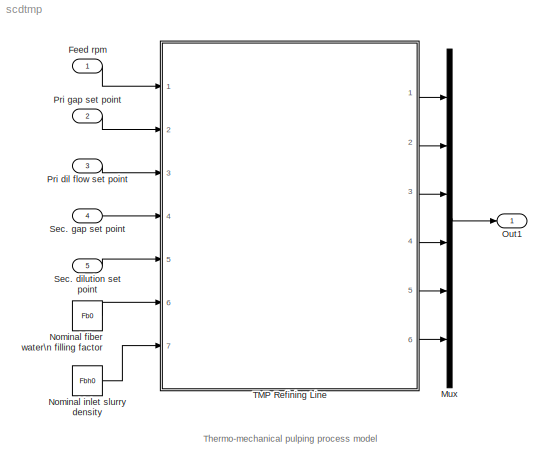
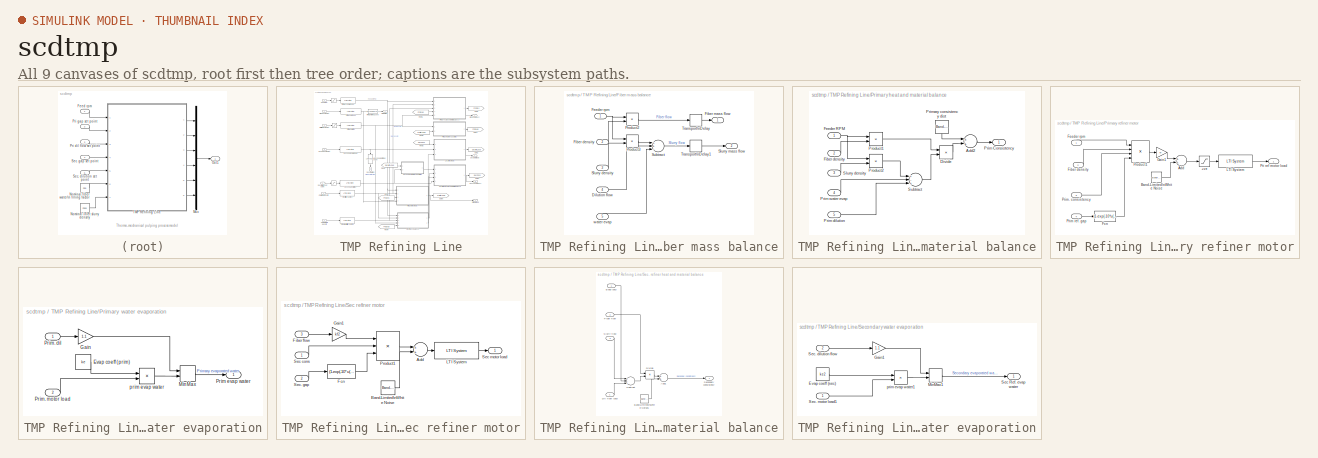
[diagram: thumbnail index - all 9 canvases of the model, root first then tree order]
MODEL scdtmp
KIND model
CONFIG PreLoadFcn = scdtmpinit
BLOCK [Inport] Feed rpm
  IconDisplay = Port number
  LatchInput = off
BLOCK [Mux] Mux
  DisplayOption = bar
  Inputs = 6
  Ports = [6, 1]
BLOCK [Constant] Nominal fiber water\n filling factor
  Value = Fb0
BLOCK [Constant] Nominal inlet slurry density
  Value = Fbh0
BLOCK [Outport] Out1
  BusOutputAsStruct = off
  IconDisplay = Port number
BLOCK [Inport] Pri dil flow set point
  IconDisplay = Port number
  LatchInput = off
  Port = 3
BLOCK [Inport] Pri gap set point
  IconDisplay = Port number
  LatchInput = off
  Port = 2
BLOCK [Inport] Sec. dilution set point
  IconDisplay = Port number
  LatchInput = off
  Port = 5
BLOCK [Inport] Sec. gap set point
  IconDisplay = Port number
  LatchInput = off
  Port = 4
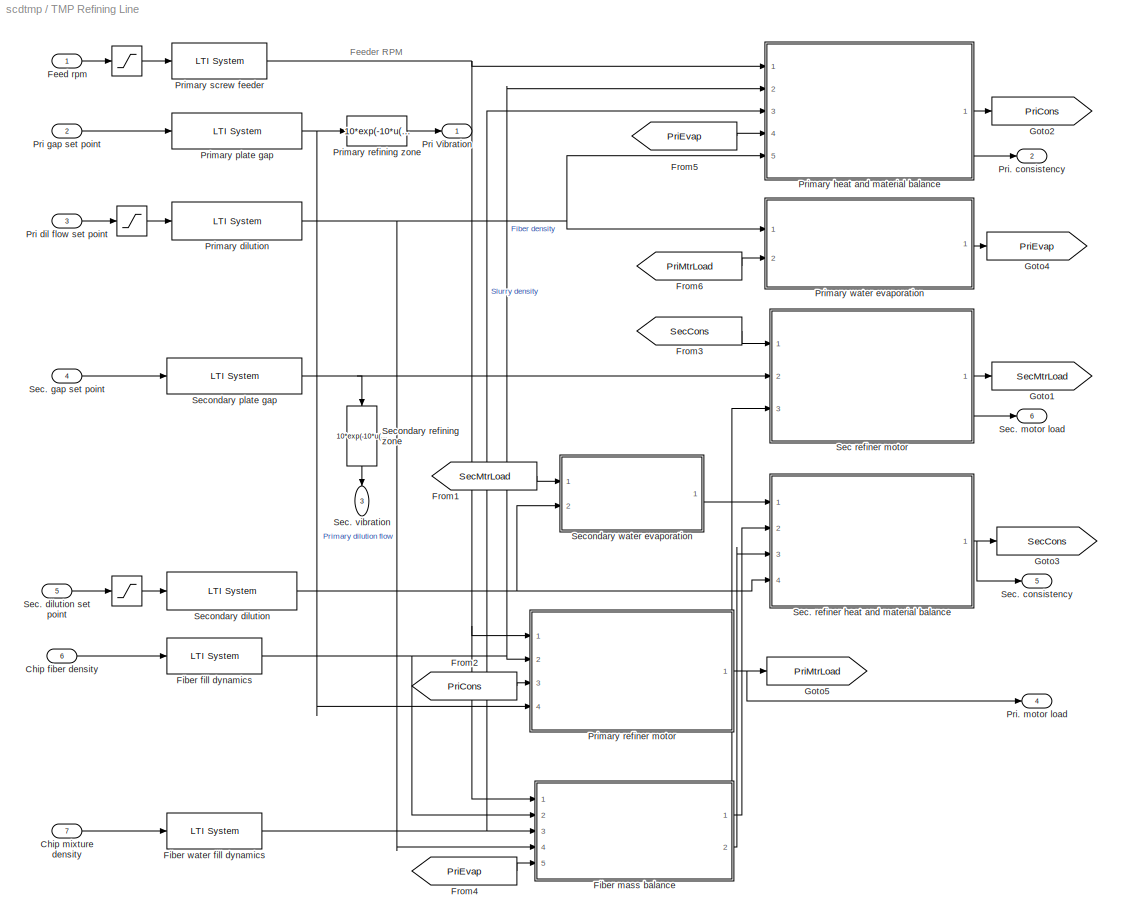
BLOCK [SubSystem] TMP Refining Line
  MinAlgLoopOccurrences = off
  Ports = [7, 6]
  PropExecContextAcrossSSBoundary = on
  RTWSystemCode = Auto
  TreatAsAtomicUnit = off
BLOCK [Saturate] TMP Refining Line/  
  LowerLimit = 25
  SampleTime = 0.5
  UpperLimit = 35
BLOCK [Saturate] TMP Refining Line/    
  LowerLimit = 90
  SampleTime = 0.5
  UpperLimit = 200
BLOCK [Saturate] TMP Refining Line/       
  LowerLimit = 90
  SampleTime = 0.5
  UpperLimit = 200
BLOCK [Inport] TMP Refining Line/Chip fiber density
  IconDisplay = Port number
  LatchInput = off
  Port = 6
BLOCK [Inport] TMP Refining Line/Chip mixture density
  IconDisplay = Port number
  LatchInput = off
  Port = 7
BLOCK [Inport] TMP Refining Line/Feed rpm
  IconDisplay = Port number
  LatchInput = off
BLOCK [Reference] TMP Refining Line/Fiber fill dynamics  REF=cstblocks/LTI System
  IC = Fb0
  Ports = [1, 1]
  ShowPortLabels = on
  SourceBlock = cstblocks/LTI System
  SourceType = LTI Block
  sys = FiberFill
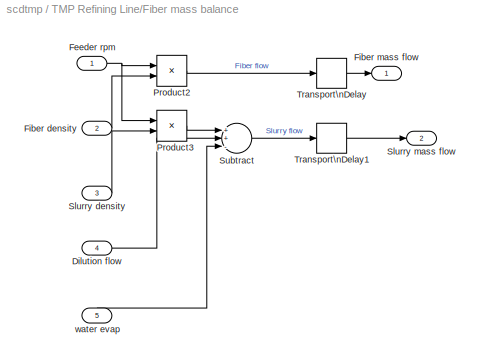
BLOCK [SubSystem] TMP Refining Line/Fiber mass balance
  MinAlgLoopOccurrences = off
  Ports = [5, 2]
  PropExecContextAcrossSSBoundary = on
  RTWSystemCode = Auto
  TreatAsAtomicUnit = off
BLOCK [Inport] TMP Refining Line/Fiber mass balance/Dilution flow
  IconDisplay = Port number
  LatchInput = off
  Port = 4
BLOCK [Inport] TMP Refining Line/Fiber mass balance/Feeder rpm
  IconDisplay = Port number
  LatchInput = off
BLOCK [Inport] TMP Refining Line/Fiber mass balance/Fiber density
  IconDisplay = Port number
  LatchInput = off
  Port = 2
BLOCK [Outport] TMP Refining Line/Fiber mass balance/Fiber mass flow
  BusOutputAsStruct = off
  IconDisplay = Port number
BLOCK [Product] TMP Refining Line/Fiber mass balance/Product2
  InputSameDT = off
  OutDataTypeMode = Inherit via internal rule
  Ports = [2, 1]
  SaturateOnIntegerOverflow = off
BLOCK [Product] TMP Refining Line/Fiber mass balance/Product3
  InputSameDT = off
  OutDataTypeMode = Inherit via internal rule
  Ports = [2, 1]
  SaturateOnIntegerOverflow = off
BLOCK [Inport] TMP Refining Line/Fiber mass balance/Slurry density
  IconDisplay = Port number
  LatchInput = off
  Port = 3
BLOCK [Outport] TMP Refining Line/Fiber mass balance/Slurry mass flow
  BusOutputAsStruct = off
  IconDisplay = Port number
  Port = 2
BLOCK [Sum] TMP Refining Line/Fiber mass balance/Subtract
  InputSameDT = off
  Inputs = ++-
  OutDataTypeMode = Inherit via internal rule
  OutScaling = 2^-10
  Ports = [3, 1]
  SaturateOnIntegerOverflow = off
BLOCK [TransportDelay] TMP Refining Line/Fiber mass balance/Transport\nDelay
  DelayTime = 2
  InitialInput = m2
BLOCK [TransportDelay] TMP Refining Line/Fiber mass balance/Transport\nDelay1
  DelayTime = 2
  InitialInput = M2
BLOCK [Inport] TMP Refining Line/Fiber mass balance/water evap
  IconDisplay = Port number
  LatchInput = off
  Port = 5
BLOCK [Reference] TMP Refining Line/Fiber water fill dynamics  REF=cstblocks/LTI System
  IC = Fbh0
  Ports = [1, 1]
  ShowPortLabels = on
  SourceBlock = cstblocks/LTI System
  SourceType = LTI Block
  sys = FiberWaterFill
BLOCK [From] TMP Refining Line/From1
  CloseFcn = tagdialog Close
  DialogController = Simulink.DDGSource
  GotoTag = SecMtrLoad
BLOCK [From] TMP Refining Line/From2
  CloseFcn = tagdialog Close
  DialogController = Simulink.DDGSource
  GotoTag = PriCons
BLOCK [From] TMP Refining Line/From3
  CloseFcn = tagdialog Close
  DialogController = Simulink.DDGSource
  GotoTag = SecCons
BLOCK [From] TMP Refining Line/From4
  CloseFcn = tagdialog Close
  DialogController = Simulink.DDGSource
  GotoTag = PriEvap
BLOCK [From] TMP Refining Line/From5
  CloseFcn = tagdialog Close
  DialogController = Simulink.DDGSource
  GotoTag = PriEvap
BLOCK [From] TMP Refining Line/From6
  CloseFcn = tagdialog Close
  DialogController = Simulink.DDGSource
  GotoTag = PriMtrLoad
BLOCK [Goto] TMP Refining Line/Goto1
  DialogController = Simulink.DDGSource
  GotoTag = SecMtrLoad
  TagVisibility = local
BLOCK [Goto] TMP Refining Line/Goto2
  DialogController = Simulink.DDGSource
  GotoTag = PriCons
  TagVisibility = local
BLOCK [Goto] TMP Refining Line/Goto3
  DialogController = Simulink.DDGSource
  GotoTag = SecCons
  TagVisibility = local
BLOCK [Goto] TMP Refining Line/Goto4
  DialogController = Simulink.DDGSource
  GotoTag = PriEvap
  TagVisibility = local
BLOCK [Goto] TMP Refining Line/Goto5
  DialogController = Simulink.DDGSource
  GotoTag = PriMtrLoad
  TagVisibility = local
BLOCK [Outport] TMP Refining Line/Pri Vibration
  BusOutputAsStruct = off
  IconDisplay = Port number
BLOCK [Inport] TMP Refining Line/Pri dil flow set point
  IconDisplay = Port number
  LatchInput = off
  Port = 3
BLOCK [Inport] TMP Refining Line/Pri gap set point
  IconDisplay = Port number
  LatchInput = off
  Port = 2
BLOCK [Outport] TMP Refining Line/Pri. consistency
  BusOutputAsStruct = off
  IconDisplay = Port number
  Port = 2
BLOCK [Outport] TMP Refining Line/Pri. motor load
  BusOutputAsStruct = off
  IconDisplay = Port number
  Port = 4
BLOCK [Reference] TMP Refining Line/Primary dilution  REF=cstblocks/LTI System
  IC = dp0
  Ports = [1, 1]
  ShowPortLabels = on
  SourceBlock = cstblocks/LTI System
  SourceType = LTI Block
  sys = DilFlowPrimary
BLOCK [SubSystem] TMP Refining Line/Primary heat and material balance
  MinAlgLoopOccurrences = off
  Ports = [5, 1]
  PropExecContextAcrossSSBoundary = on
  RTWSystemCode = Auto
  TreatAsAtomicUnit = off
BLOCK [Sum] TMP Refining Line/Primary heat and material balance/Add2
  InputSameDT = off
  OutDataTypeMode = Inherit via internal rule
  OutScaling = 2^-10
  Ports = [2, 1]
  SaturateOnIntegerOverflow = off
BLOCK [Product] TMP Refining Line/Primary heat and material balance/Divide
  InputSameDT = off
  Inputs = */
  OutDataTypeMode = Inherit via internal rule
  OutScaling = 2^-10
  Ports = [2, 1]
  RndMeth = Floor
  SampleTime = .5
  SaturateOnIntegerOverflow = off
BLOCK [Inport] TMP Refining Line/Primary heat and material balance/Feeder RPM
  IconDisplay = Port number
  LatchInput = off
BLOCK [Inport] TMP Refining Line/Primary heat and material balance/Fiber density
  IconDisplay = Port number
  LatchInput = off
  Port = 2
BLOCK [Outport] TMP Refining Line/Primary heat and material balance/Prim Consistency
  BusOutputAsStruct = off
  IconDisplay = Port number
BLOCK [Inport] TMP Refining Line/Primary heat and material balance/Prim dilution
  IconDisplay = Port number
  LatchInput = off
  Port = 5
BLOCK [Inport] TMP Refining Line/Primary heat and material balance/Prim water evap
  IconDisplay = Port number
  LatchInput = off
  Port = 4
BLOCK [Reference] TMP Refining Line/Primary heat and material balance/Primary consistency dist  REF=simulink/Sources/Band-Limited\nWhite Noise
  Cov = 0.0001
  Ports = [0, 1]
  ShowPortLabels = on
  SourceBlock = simulink/Sources/Band-Limited\nWhite Noise
  SourceType = Band-Limited White Noise.
  Ts = 0.5
  VectorParams1D = on
  seed = [23341]
BLOCK [Product] TMP Refining Line/Primary heat and material balance/Product1
  InputSameDT = off
  OutDataTypeMode = Inherit via internal rule
  Ports = [2, 1]
  SaturateOnIntegerOverflow = off
BLOCK [Product] TMP Refining Line/Primary heat and material balance/Product2
  InputSameDT = off
  OutDataTypeMode = Inherit via internal rule
  Ports = [2, 1]
  SaturateOnIntegerOverflow = off
BLOCK [Inport] TMP Refining Line/Primary heat and material balance/Slurry density
  IconDisplay = Port number
  LatchInput = off
  Port = 3
BLOCK [Sum] TMP Refining Line/Primary heat and material balance/Subtract
  InputSameDT = off
  Inputs = +-+
  OutDataTypeMode = Inherit via internal rule
  OutScaling = 2^-10
  Ports = [3, 1]
  SaturateOnIntegerOverflow = off
BLOCK [Reference] TMP Refining Line/Primary plate gap  REF=cstblocks/LTI System
  IC = gp0
  Ports = [1, 1]
  ShowPortLabels = on
  SourceBlock = cstblocks/LTI System
  SourceType = LTI Block
  sys = PlateGapPrimary
BLOCK [SubSystem] TMP Refining Line/Primary refiner motor
  MinAlgLoopOccurrences = off
  Ports = [4, 1]
  PropExecContextAcrossSSBoundary = on
  RTWSystemCode = Auto
  TreatAsAtomicUnit = off
BLOCK [Saturate] TMP Refining Line/Primary refiner motor/+ve
  LowerLimit = 0
  SampleTime = 0.5
  UpperLimit = inf
BLOCK [Sum] TMP Refining Line/Primary refiner motor/Add
  InputSameDT = off
  OutDataTypeMode = Inherit via internal rule
  OutScaling = 2^-10
  Ports = [2, 1]
  SaturateOnIntegerOverflow = off
BLOCK [Reference] TMP Refining Line/Primary refiner motor/Band-Limited\nWhite Noise  REF=simulink/Sources/Band-Limited\nWhite Noise
  Cov = 0.0001
  Ports = [0, 1]
  ShowPortLabels = on
  SourceBlock = simulink/Sources/Band-Limited\nWhite Noise
  SourceType = Band-Limited White Noise.
  Ts = 0.5
  VectorParams1D = on
  seed = [23341]
BLOCK [Fcn] TMP Refining Line/Primary refiner motor/Fcn
  Expr = (1-exp(-10*u(1)))*(1.2-0.3*u(1))
BLOCK [Inport] TMP Refining Line/Primary refiner motor/Feeder rpm
  IconDisplay = Port number
  LatchInput = off
BLOCK [Inport] TMP Refining Line/Primary refiner motor/Fiber density
  IconDisplay = Port number
  LatchInput = off
  Port = 2
BLOCK [Gain] TMP Refining Line/Primary refiner motor/Gain1
  Gain = kf
  OutDataTypeMode = Inherit via internal rule
  ParameterDataTypeMode = Inherit via internal rule
  SaturateOnIntegerOverflow = off
BLOCK [Reference] TMP Refining Line/Primary refiner motor/LTI System  REF=cstblocks/LTI System
  IC = mlp0
  Ports = [1, 1]
  ShowPortLabels = on
  SourceBlock = cstblocks/LTI System
  SourceType = LTI Block
  sys = UnitDelay
BLOCK [Outport] TMP Refining Line/Primary refiner motor/Pri ref motor load
  BusOutputAsStruct = off
  IconDisplay = Port number
BLOCK [Inport] TMP Refining Line/Primary refiner motor/Prim ref. gap
  IconDisplay = Port number
  LatchInput = off
  Port = 4
BLOCK [Inport] TMP Refining Line/Primary refiner motor/Prim. consistency
  IconDisplay = Port number
  LatchInput = off
  Port = 3
BLOCK [Product] TMP Refining Line/Primary refiner motor/Product1
  InputSameDT = off
  Inputs = 4
  OutDataTypeMode = Inherit via internal rule
  Ports = [4, 1]
  SaturateOnIntegerOverflow = off
BLOCK [Fcn] TMP Refining Line/Primary refining zone
  Expr = 10*exp(-10*u(1)+2)*(1.26-0.3*u(1))-(1-exp(-10*u(1)+2))*.3+.3
BLOCK [Reference] TMP Refining Line/Primary screw feeder  REF=cstblocks/LTI System
  IC = vp0
  Ports = [1, 1]
  ShowPortLabels = on
  SourceBlock = cstblocks/LTI System
  SourceType = LTI Block
  sys = ChipFeeder
BLOCK [SubSystem] TMP Refining Line/Primary water evaporation
  MinAlgLoopOccurrences = off
  Ports = [2, 1]
  PropExecContextAcrossSSBoundary = on
  RTWSystemCode = Auto
  TreatAsAtomicUnit = off
BLOCK [Constant] TMP Refining Line/Primary water evaporation/Evap coeff (prim)
  Value = ke
BLOCK [Gain] TMP Refining Line/Primary water evaporation/Gain
  Gain = 1.1
  OutDataTypeMode = Inherit via internal rule
  ParameterDataTypeMode = Inherit via internal rule
  SaturateOnIntegerOverflow = off
BLOCK [MinMax] TMP Refining Line/Primary water evaporation/MinMax
  Function = min
  InputSameDT = off
  Inputs = 2
  Ports = [2, 1]
  SaturateOnIntegerOverflow = off
BLOCK [Outport] TMP Refining Line/Primary water evaporation/Prim evap water
  BusOutputAsStruct = off
  IconDisplay = Port number
BLOCK [Inport] TMP Refining Line/Primary water evaporation/Prim. dil
  IconDisplay = Port number
  LatchInput = off
BLOCK [Inport] TMP Refining Line/Primary water evaporation/Prim. motor load
  IconDisplay = Port number
  LatchInput = off
  Port = 2
BLOCK [Product] TMP Refining Line/Primary water evaporation/prim evap water
  InputSameDT = off
  OutDataTypeMode = Inherit via internal rule
  Ports = [2, 1]
  SaturateOnIntegerOverflow = off
BLOCK [SubSystem] TMP Refining Line/Sec refiner motor
  MinAlgLoopOccurrences = off
  Ports = [3, 1]
  PropExecContextAcrossSSBoundary = on
  RTWSystemCode = Auto
  TreatAsAtomicUnit = off
BLOCK [Sum] TMP Refining Line/Sec refiner motor/Add
  InputSameDT = off
  OutDataTypeMode = Inherit via internal rule
  OutScaling = 2^-10
  Ports = [2, 1]
  SaturateOnIntegerOverflow = off
BLOCK [Reference] TMP Refining Line/Sec refiner motor/Band-Limited\nWhite Noise  REF=simulink/Sources/Band-Limited\nWhite Noise
  Cov = 0.0001
  Ports = [0, 1]
  ShowPortLabels = on
  SourceBlock = simulink/Sources/Band-Limited\nWhite Noise
  SourceType = Band-Limited White Noise.
  Ts = 0.5
  VectorParams1D = on
  seed = [23341]
BLOCK [Fcn] TMP Refining Line/Sec refiner motor/Fcn
  Expr = (1-exp(-10*u(1)))*(1.2-0.3*u(1))
BLOCK [Inport] TMP Refining Line/Sec refiner motor/Fiber flow
  IconDisplay = Port number
  LatchInput = off
  Port = 3
BLOCK [Gain] TMP Refining Line/Sec refiner motor/Gain1
  Gain = kf2
  OutDataTypeMode = Inherit via internal rule
  ParameterDataTypeMode = Inherit via internal rule
  SaturateOnIntegerOverflow = off
BLOCK [Reference] TMP Refining Line/Sec refiner motor/LTI System  REF=cstblocks/LTI System
  IC = mls0
  Ports = [1, 1]
  ShowPortLabels = on
  SourceBlock = cstblocks/LTI System
  SourceType = LTI Block
  sys = UnitDelay
BLOCK [Product] TMP Refining Line/Sec refiner motor/Product1
  InputSameDT = off
  Inputs = 3
  OutDataTypeMode = Inherit via internal rule
  Ports = [3, 1]
  SaturateOnIntegerOverflow = off
BLOCK [Inport] TMP Refining Line/Sec refiner motor/Sec cons
  IconDisplay = Port number
  LatchInput = off
BLOCK [Outport] TMP Refining Line/Sec refiner motor/Sec motor load
  BusOutputAsStruct = off
  IconDisplay = Port number
BLOCK [Inport] TMP Refining Line/Sec refiner motor/Sec. gap
  IconDisplay = Port number
  LatchInput = off
  Port = 2
BLOCK [Outport] TMP Refining Line/Sec. consistency
  BusOutputAsStruct = off
  IconDisplay = Port number
  Port = 5
BLOCK [Inport] TMP Refining Line/Sec. dilution set point
  IconDisplay = Port number
  LatchInput = off
  Port = 5
BLOCK [Inport] TMP Refining Line/Sec. gap set point
  IconDisplay = Port number
  LatchInput = off
  Port = 4
BLOCK [Outport] TMP Refining Line/Sec. motor load
  BusOutputAsStruct = off
  IconDisplay = Port number
  Port = 6
BLOCK [SubSystem] TMP Refining Line/Sec. refiner heat and material balance
  MinAlgLoopOccurrences = off
  Ports = [4, 1]
  PropExecContextAcrossSSBoundary = on
  RTWSystemCode = Auto
  TreatAsAtomicUnit = off
BLOCK [Sum] TMP Refining Line/Sec. refiner heat and material balance/Add1
  InputSameDT = off
  OutDataTypeMode = Inherit via internal rule
  OutScaling = 2^-10
  Ports = [2, 1]
  SaturateOnIntegerOverflow = off
BLOCK [Reference] TMP Refining Line/Sec. refiner heat and material balance/Band-Limited\nWhite Noise1  REF=simulink/Sources/Band-Limited\nWhite Noise
  Cov = 0.0001
  Ports = [0, 1]
  ShowPortLabels = on
  SourceBlock = simulink/Sources/Band-Limited\nWhite Noise
  SourceType = Band-Limited White Noise.
  Ts = 0.5
  VectorParams1D = on
  seed = [23341]
BLOCK [Inport] TMP Refining Line/Sec. refiner heat and material balance/Dil flow (sec)
  IconDisplay = Port number
  LatchInput = off
  Port = 4
BLOCK [Product] TMP Refining Line/Sec. refiner heat and material balance/Divide
  InputSameDT = off
  Inputs = */
  OutDataTypeMode = Inherit via internal rule
  OutScaling = 2^-10
  Ports = [2, 1]
  RndMeth = Floor
  SampleTime = .5
  SaturateOnIntegerOverflow = off
BLOCK [Inport] TMP Refining Line/Sec. refiner heat and material balance/Evap (sec)
  IconDisplay = Port number
  LatchInput = off
BLOCK [Inport] TMP Refining Line/Sec. refiner heat and material balance/Fiber flow
  IconDisplay = Port number
  LatchInput = off
  Port = 2
BLOCK [Outport] TMP Refining Line/Sec. refiner heat and material balance/Secondary consistency
  BusOutputAsStruct = off
  IconDisplay = Port number
BLOCK [Inport] TMP Refining Line/Sec. refiner heat and material balance/Slurry flow
  IconDisplay = Port number
  LatchInput = off
  Port = 3
BLOCK [Sum] TMP Refining Line/Sec. refiner heat and material balance/Subtract
  InputSameDT = off
  Inputs = +-+
  OutDataTypeMode = Inherit via internal rule
  OutScaling = 2^-10
  Ports = [3, 1]
  SaturateOnIntegerOverflow = off
BLOCK [Outport] TMP Refining Line/Sec. vibration
  BusOutputAsStruct = off
  IconDisplay = Port number
  Port = 3
BLOCK [Reference] TMP Refining Line/Secondary dilution  REF=cstblocks/LTI System
  IC = gs0
  Ports = [1, 1]
  ShowPortLabels = on
  SourceBlock = cstblocks/LTI System
  SourceType = LTI Block
  sys = DilFlowSecondary
BLOCK [Reference] TMP Refining Line/Secondary plate gap  REF=cstblocks/LTI System
  IC = gs0
  Ports = [1, 1]
  ShowPortLabels = on
  SourceBlock = cstblocks/LTI System
  SourceType = LTI Block
  sys = PlateGapSecondary
BLOCK [Fcn] TMP Refining Line/Secondary refining zone
  Expr = 10*exp(-10*u(1)+2)*(1.26-0.3*u(1))-(1-exp(-10*u(1)+2))*.3+.3
  SampleTime = 0.5
BLOCK [SubSystem] TMP Refining Line/Secondary water evaporation
  MinAlgLoopOccurrences = off
  Ports = [2, 1]
  PropExecContextAcrossSSBoundary = on
  RTWSystemCode = Auto
  TreatAsAtomicUnit = off
BLOCK [Constant] TMP Refining Line/Secondary water evaporation/Evap coeff (sec)
  Value = ke2
BLOCK [Gain] TMP Refining Line/Secondary water evaporation/Gain1
  Gain = 1.1
  OutDataTypeMode = Inherit via internal rule
  ParameterDataTypeMode = Inherit via internal rule
  SaturateOnIntegerOverflow = off
BLOCK [MinMax] TMP Refining Line/Secondary water evaporation/MinMax1
  Function = min
  InputSameDT = off
  Inputs = 2
  Ports = [2, 1]
  SaturateOnIntegerOverflow = off
BLOCK [Outport] TMP Refining Line/Secondary water evaporation/Sec Ref. evap water
  BusOutputAsStruct = off
  IconDisplay = Port number
BLOCK [Inport] TMP Refining Line/Secondary water evaporation/Sec. dilution flow
  IconDisplay = Port number
  LatchInput = off
  Port = 2
BLOCK [Inport] TMP Refining Line/Secondary water evaporation/Sec. motor load1
  IconDisplay = Port number
  LatchInput = off
BLOCK [Product] TMP Refining Line/Secondary water evaporation/prim evap water1
  InputSameDT = off
  OutDataTypeMode = Inherit via internal rule
  Ports = [2, 1]
  SaturateOnIntegerOverflow = off
ANNOTATION (root): Thermo-mechanical pulping process model
ANNOTATION TMP Refining Line: Feeder RPM
LINE Feed rpm:1 -> TMP Refining Line:1
LINE Mux:1 -> Out1:1
LINE Nominal fiber water\n filling factor:1 -> TMP Refining Line:6
LINE Nominal inlet slurry density:1 -> TMP Refining Line:7
LINE Pri dil flow set point:1 -> TMP Refining Line:3
LINE Pri gap set point:1 -> TMP Refining Line:2
LINE Sec. dilution set point:1 -> TMP Refining Line:5
LINE Sec. gap set point:1 -> TMP Refining Line:4
LINE TMP Refining Line/       :1 -> TMP Refining Line/Secondary dilution:1
LINE TMP Refining Line/    :1 -> TMP Refining Line/Primary dilution:1
LINE TMP Refining Line/  :1 -> TMP Refining Line/Primary screw feeder:1
LINE TMP Refining Line/Chip fiber density:1 -> TMP Refining Line/Fiber fill dynamics:1
LINE TMP Refining Line/Chip mixture density:1 -> TMP Refining Line/Fiber water fill dynamics:1
LINE TMP Refining Line/Feed rpm:1 -> TMP Refining Line/  :1
NET TMP Refining Line/Fiber fill dynamics:1 -> TMP Refining Line/Fiber mass balance:2, TMP Refining Line/Primary heat and material balance:2, TMP Refining Line/Primary refiner motor:2
LINE TMP Refining Line/Fiber mass balance/Dilution flow:1 -> TMP Refining Line/Fiber mass balance/Subtract:2
NET TMP Refining Line/Fiber mass balance/Feeder rpm:1 -> TMP Refining Line/Fiber mass balance/Product2:1, TMP Refining Line/Fiber mass balance/Product3:1
LINE TMP Refining Line/Fiber mass balance/Fiber density:1 -> TMP Refining Line/Fiber mass balance/Product2:2
LINE TMP Refining Line/Fiber mass balance/Product2:1 -> TMP Refining Line/Fiber mass balance/Transport\nDelay:1
LINE TMP Refining Line/Fiber mass balance/Product3:1 -> TMP Refining Line/Fiber mass balance/Subtract:1
LINE TMP Refining Line/Fiber mass balance/Slurry density:1 -> TMP Refining Line/Fiber mass balance/Product3:2
LINE TMP Refining Line/Fiber mass balance/Subtract:1 -> TMP Refining Line/Fiber mass balance/Transport\nDelay1:1
LINE TMP Refining Line/Fiber mass balance/Transport\nDelay1:1 -> TMP Refining Line/Fiber mass balance/Slurry mass flow:1
LINE TMP Refining Line/Fiber mass balance/Transport\nDelay:1 -> TMP Refining Line/Fiber mass balance/Fiber mass flow:1
LINE TMP Refining Line/Fiber mass balance/water evap:1 -> TMP Refining Line/Fiber mass balance/Subtract:3
NET TMP Refining Line/Fiber mass balance:1 -> TMP Refining Line/Sec refiner motor:3, TMP Refining Line/Sec. refiner heat and material balance:2
LINE TMP Refining Line/Fiber mass balance:2 -> TMP Refining Line/Sec. refiner heat and material balance:3
NET TMP Refining Line/Fiber water fill dynamics:1 -> TMP Refining Line/Fiber mass balance:3, TMP Refining Line/Primary heat and material balance:3
LINE TMP Refining Line/From1:1 -> TMP Refining Line/Secondary water evaporation:1
LINE TMP Refining Line/From2:1 -> TMP Refining Line/Primary refiner motor:3
LINE TMP Refining Line/From3:1 -> TMP Refining Line/Sec refiner motor:1
LINE TMP Refining Line/From4:1 -> TMP Refining Line/Fiber mass balance:5
LINE TMP Refining Line/From5:1 -> TMP Refining Line/Primary heat and material balance:4
LINE TMP Refining Line/From6:1 -> TMP Refining Line/Primary water evaporation:2
LINE TMP Refining Line/Pri dil flow set point:1 -> TMP Refining Line/    :1
LINE TMP Refining Line/Pri gap set point:1 -> TMP Refining Line/Primary plate gap:1
NET TMP Refining Line/Primary dilution:1 -> TMP Refining Line/Fiber mass balance:4, TMP Refining Line/Primary heat and material balance:5, TMP Refining Line/Primary water evaporation:1
LINE TMP Refining Line/Primary heat and material balance/Add2:1 -> TMP Refining Line/Primary heat and material balance/Prim Consistency:1
LINE TMP Refining Line/Primary heat and material balance/Divide:1 -> TMP Refining Line/Primary heat and material balance/Add2:2
NET TMP Refining Line/Primary heat and material balance/Feeder RPM:1 -> TMP Refining Line/Primary heat and material balance/Product1:1, TMP Refining Line/Primary heat and material balance/Product2:1
LINE TMP Refining Line/Primary heat and material balance/Fiber density:1 -> TMP Refining Line/Primary heat and material balance/Product1:2
LINE TMP Refining Line/Primary heat and material balance/Prim dilution:1 -> TMP Refining Line/Primary heat and material balance/Subtract:3
LINE TMP Refining Line/Primary heat and material balance/Prim water evap:1 -> TMP Refining Line/Primary heat and material balance/Subtract:2
LINE TMP Refining Line/Primary heat and material balance/Primary consistency dist:1 -> TMP Refining Line/Primary heat and material balance/Add2:1
LINE TMP Refining Line/Primary heat and material balance/Product1:1 -> TMP Refining Line/Primary heat and material balance/Divide:1
LINE TMP Refining Line/Primary heat and material balance/Product2:1 -> TMP Refining Line/Primary heat and material balance/Subtract:1
LINE TMP Refining Line/Primary heat and material balance/Slurry density:1 -> TMP Refining Line/Primary heat and material balance/Product2:2
LINE TMP Refining Line/Primary heat and material balance/Subtract:1 -> TMP Refining Line/Primary heat and material balance/Divide:2
NET TMP Refining Line/Primary heat and material balance:1 -> TMP Refining Line/Goto2:1, TMP Refining Line/Pri. consistency:1
NET TMP Refining Line/Primary plate gap:1 -> TMP Refining Line/Primary refiner motor:4, TMP Refining Line/Primary refining zone:1
LINE TMP Refining Line/Primary refiner motor/+ve:1 -> TMP Refining Line/Primary refiner motor/LTI System:1
LINE TMP Refining Line/Primary refiner motor/Add:1 -> TMP Refining Line/Primary refiner motor/+ve:1
LINE TMP Refining Line/Primary refiner motor/Band-Limited\nWhite Noise:1 -> TMP Refining Line/Primary refiner motor/Add:2
LINE TMP Refining Line/Primary refiner motor/Fcn:1 -> TMP Refining Line/Primary refiner motor/Product1:4
LINE TMP Refining Line/Primary refiner motor/Feeder rpm:1 -> TMP Refining Line/Primary refiner motor/Product1:1
LINE TMP Refining Line/Primary refiner motor/Fiber density:1 -> TMP Refining Line/Primary refiner motor/Product1:2
LINE TMP Refining Line/Primary refiner motor/Gain1:1 -> TMP Refining Line/Primary refiner motor/Add:1
LINE TMP Refining Line/Primary refiner motor/LTI System:1 -> TMP Refining Line/Primary refiner motor/Pri ref motor load:1
LINE TMP Refining Line/Primary refiner motor/Prim ref. gap:1 -> TMP Refining Line/Primary refiner motor/Fcn:1
LINE TMP Refining Line/Primary refiner motor/Prim. consistency:1 -> TMP Refining Line/Primary refiner motor/Product1:3
LINE TMP Refining Line/Primary refiner motor/Product1:1 -> TMP Refining Line/Primary refiner motor/Gain1:1
NET TMP Refining Line/Primary refiner motor:1 -> TMP Refining Line/Goto5:1, TMP Refining Line/Pri. motor load:1
LINE TMP Refining Line/Primary refining zone:1 -> TMP Refining Line/Pri Vibration:1
NET TMP Refining Line/Primary screw feeder:1 -> TMP Refining Line/Fiber mass balance:1, TMP Refining Line/Primary heat and material balance:1, TMP Refining Line/Primary refiner motor:1
LINE TMP Refining Line/Primary water evaporation/Evap coeff (prim):1 -> TMP Refining Line/Primary water evaporation/prim evap water:1
LINE TMP Refining Line/Primary water evaporation/Gain:1 -> TMP Refining Line/Primary water evaporation/MinMax:1
LINE TMP Refining Line/Primary water evaporation/MinMax:1 -> TMP Refining Line/Primary water evaporation/Prim evap water:1
LINE TMP Refining Line/Primary water evaporation/Prim. dil:1 -> TMP Refining Line/Primary water evaporation/Gain:1
LINE TMP Refining Line/Primary water evaporation/Prim. motor load:1 -> TMP Refining Line/Primary water evaporation/prim evap water:2
LINE TMP Refining Line/Primary water evaporation/prim evap water:1 -> TMP Refining Line/Primary water evaporation/MinMax:2
LINE TMP Refining Line/Primary water evaporation:1 -> TMP Refining Line/Goto4:1
LINE TMP Refining Line/Sec refiner motor/Add:1 -> TMP Refining Line/Sec refiner motor/LTI System:1
LINE TMP Refining Line/Sec refiner motor/Band-Limited\nWhite Noise:1 -> TMP Refining Line/Sec refiner motor/Add:2
LINE TMP Refining Line/Sec refiner motor/Fcn:1 -> TMP Refining Line/Sec refiner motor/Product1:3
LINE TMP Refining Line/Sec refiner motor/Fiber flow:1 -> TMP Refining Line/Sec refiner motor/Gain1:1
LINE TMP Refining Line/Sec refiner motor/Gain1:1 -> TMP Refining Line/Sec refiner motor/Product1:1
LINE TMP Refining Line/Sec refiner motor/LTI System:1 -> TMP Refining Line/Sec refiner motor/Sec motor load:1
LINE TMP Refining Line/Sec refiner motor/Product1:1 -> TMP Refining Line/Sec refiner motor/Add:1
LINE TMP Refining Line/Sec refiner motor/Sec cons:1 -> TMP Refining Line/Sec refiner motor/Product1:2
LINE TMP Refining Line/Sec refiner motor/Sec. gap:1 -> TMP Refining Line/Sec refiner motor/Fcn:1
NET TMP Refining Line/Sec refiner motor:1 -> TMP Refining Line/Goto1:1, TMP Refining Line/Sec. motor load:1
LINE TMP Refining Line/Sec. dilution set point:1 -> TMP Refining Line/       :1
LINE TMP Refining Line/Sec. gap set point:1 -> TMP Refining Line/Secondary plate gap:1
LINE TMP Refining Line/Sec. refiner heat and material balance/Add1:1 -> TMP Refining Line/Sec. refiner heat and material balance/Secondary consistency:1
LINE TMP Refining Line/Sec. refiner heat and material balance/Band-Limited\nWhite Noise1:1 -> TMP Refining Line/Sec. refiner heat and material balance/Add1:2
LINE TMP Refining Line/Sec. refiner heat and material balance/Dil flow (sec):1 -> TMP Refining Line/Sec. refiner heat and material balance/Subtract:3
LINE TMP Refining Line/Sec. refiner heat and material balance/Divide:1 -> TMP Refining Line/Sec. refiner heat and material balance/Add1:1
LINE TMP Refining Line/Sec. refiner heat and material balance/Evap (sec):1 -> TMP Refining Line/Sec. refiner heat and material balance/Subtract:2
LINE TMP Refining Line/Sec. refiner heat and material balance/Fiber flow:1 -> TMP Refining Line/Sec. refiner heat and material balance/Divide:1
LINE TMP Refining Line/Sec. refiner heat and material balance/Slurry flow:1 -> TMP Refining Line/Sec. refiner heat and material balance/Subtract:1
LINE TMP Refining Line/Sec. refiner heat and material balance/Subtract:1 -> TMP Refining Line/Sec. refiner heat and material balance/Divide:2
NET TMP Refining Line/Sec. refiner heat and material balance:1 -> TMP Refining Line/Goto3:1, TMP Refining Line/Sec. consistency:1
NET TMP Refining Line/Secondary dilution:1 -> TMP Refining Line/Sec. refiner heat and material balance:4, TMP Refining Line/Secondary water evaporation:2
NET TMP Refining Line/Secondary plate gap:1 -> TMP Refining Line/Sec refiner motor:2, TMP Refining Line/Secondary refining zone:1
LINE TMP Refining Line/Secondary refining zone:1 -> TMP Refining Line/Sec. vibration:1
LINE TMP Refining Line/Secondary water evaporation/Evap coeff (sec):1 -> TMP Refining Line/Secondary water evaporation/prim evap water1:1
LINE TMP Refining Line/Secondary water evaporation/Gain1:1 -> TMP Refining Line/Secondary water evaporation/MinMax1:1
LINE TMP Refining Line/Secondary water evaporation/MinMax1:1 -> TMP Refining Line/Secondary water evaporation/Sec Ref. evap water:1
LINE TMP Refining Line/Secondary water evaporation/Sec. dilution flow:1 -> TMP Refining Line/Secondary water evaporation/Gain1:1
LINE TMP Refining Line/Secondary water evaporation/Sec. motor load1:1 -> TMP Refining Line/Secondary water evaporation/prim evap water1:2
LINE TMP Refining Line/Secondary water evaporation/prim evap water1:1 -> TMP Refining Line/Secondary water evaporation/MinMax1:2
LINE TMP Refining Line/Secondary water evaporation:1 -> TMP Refining Line/Sec. refiner heat and material balance:1
LINE TMP Refining Line:1 -> Mux:1
LINE TMP Refining Line:2 -> Mux:2
LINE TMP Refining Line:3 -> Mux:3
LINE TMP Refining Line:4 -> Mux:4
LINE TMP Refining Line:5 -> Mux:5
LINE TMP Refining Line:6 -> Mux:6
note: NET lines group one-source signal fan-out (src -> all destinations, sorted); 1:1 wires keep LINE
